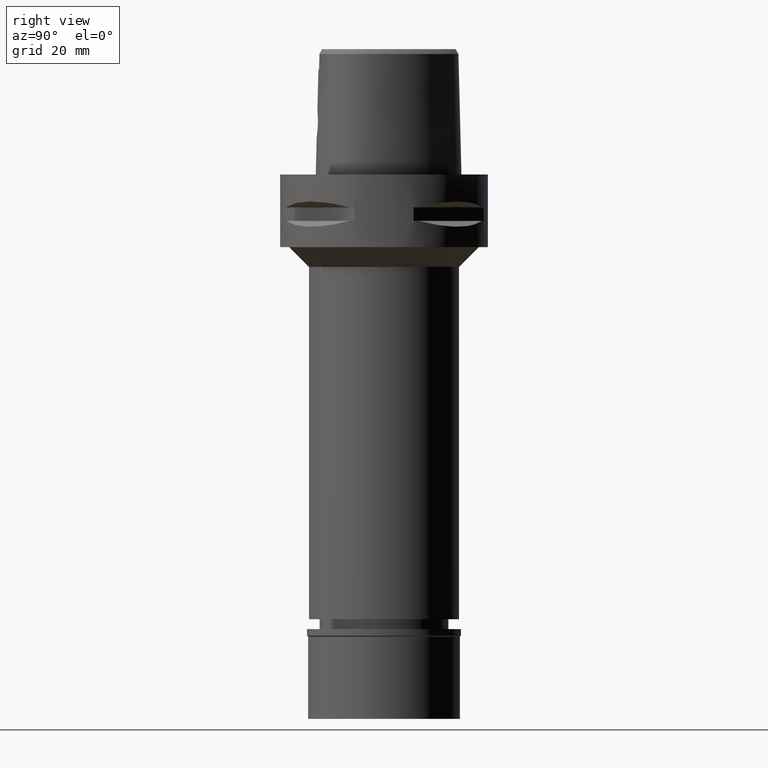
[diagram: clean part render]
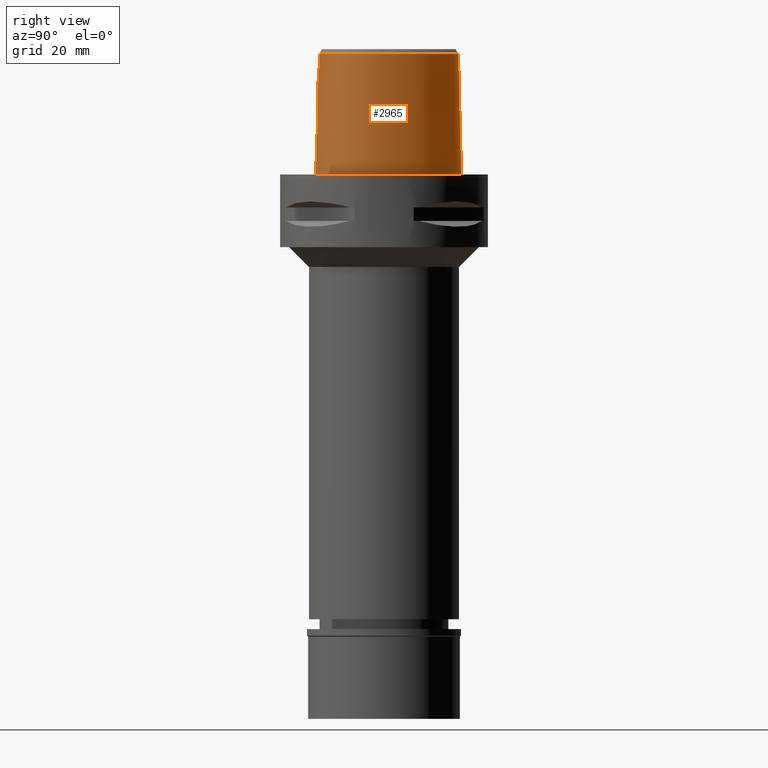
[diagram: same view with one face highlighted and labeled with its STEP entity id]
A machine part, right view. The second image highlights one B-rep face of the part: STEP entity #2965.
In plain terms, the highlighted face is a freeform B-spline surface patch.
Its self-contained STEP definition (entity closure, byte-faithful):
#16 = CARTESIAN_POINT ( 'NONE',  ( 2.282207030334159281, -20.29700151025292243, 12.15162930677144715 ) ) ;
#56 = CARTESIAN_POINT ( 'NONE',  ( 2.808608590041282937, -20.24816661311363220, 12.58196638600997552 ) ) ;
#82 = CARTESIAN_POINT ( 'NONE',  ( 3.644654988657338279, -20.14185568962083295, 13.73169098987477099 ) ) ;
#102 = CARTESIAN_POINT ( 'NONE',  ( 11.23887130171000059, -18.91049775788000176, -0.7304375839958999750 ) ) ;
#124 = CARTESIAN_POINT ( 'NONE',  ( 18.12052909015000068, -13.74516032098000018, 24.59139866119000217 ) ) ;
#126 = CARTESIAN_POINT ( 'NONE',  ( 21.07429999882513627, -0.4408303635840749024, 36.52186680739955449 ) ) ;
#178 = CARTESIAN_POINT ( 'NONE',  ( 16.97022730962000026, -15.69280482925999820, -0.7304375839958999750 ) ) ;
#214 = CARTESIAN_POINT ( 'NONE',  ( 7.099337800026000345, 20.50831394740000135, 37.25231678379000755 ) ) ;
#219 = CARTESIAN_POINT ( 'NONE',  ( 3.736696120837999402, -19.67778323291999953, 31.80000004972999861 ) ) ;
#237 = CARTESIAN_POINT ( 'NONE',  ( 19.15132530701000135, -12.46323155735000121, 24.59139866119000217 ) ) ;
#255 = CARTESIAN_POINT ( 'NONE',  ( 2.520050460813456183, -20.11738995382130568, 18.67115940201987812 ) ) ;
#262 = CARTESIAN_POINT ( 'NONE',  ( 19.54161185373000009, -11.28235486238000007, 37.25231678379000755 ) ) ;
#285 = CARTESIAN_POINT ( 'NONE',  ( 21.31039837220999900, -4.105938496790999537, 37.25231678379000755 ) ) ;
#300 = CARTESIAN_POINT ( 'NONE',  ( 21.97832647786460925, -0.2810937500000018630, -1.531435568635775013E-14 ) ) ;
#305 = CARTESIAN_POINT ( 'NONE',  ( 14.17879762237999941, 15.44741198408999949, 11.93048053859999946 ) ) ;
#425 = CARTESIAN_POINT ( 'NONE',  ( 2.564517726975463763, 23.29328124999227256, -1.531435568635775013E-14 ) ) ;
#451 = CARTESIAN_POINT ( 'NONE',  ( 3.927790621267496896, -20.09243382075442952, 14.47756111132513901 ) ) ;
#458 = CARTESIAN_POINT ( 'NONE',  ( 4.467522181835737349, -19.48130276147253426, 36.52186680739954738 ) ) ;
#486 = CARTESIAN_POINT ( 'NONE',  ( -0.4520500676063000101, -20.37458451786000424, 11.93048053859999946 ) ) ;
#488 = CARTESIAN_POINT ( 'NONE',  ( 7.300578979382257749, -19.07170738130455234, 36.52186680739955449 ) ) ;
#500 = CARTESIAN_POINT ( 'NONE',  ( 4.038482247991152185, -20.06165359963867090, 15.18817721994794212 ) ) ;
#509 = CARTESIAN_POINT ( 'NONE',  ( 11.02138184146000022, -18.31230465115999806, 24.59139866119000217 ) ) ;
#529 = EDGE_CURVE ( 'NONE', #4856, #996, #1940, .T. ) ;
#575 = B_SPLINE_SURFACE_WITH_KNOTS ( 'NONE', 3, 3, ( 
 ( #1341, #3568, #2856, #1306 ),
 ( #3162, #486, #919, #3521 ),
 ( #2874, #2463, #2443, #1273 ),
 ( #1676, #4735, #2078, #3951 ),
 ( #102, #2033, #509, #1653 ),
 ( #4759, #4403, #2809, #3594 ),
 ( #178, #1632, #3145, #4683 ),
 ( #1251, #3548, #124, #2919 ),
 ( #4125, #1045, #237, #3717 ),
 ( #4902, #1772, #2127, #262 ),
 ( #2508, #4509, #1071, #4102 ),
 ( #2527, #3308, #2225, #4454 ),
 ( #2578, #3737, #3664, #4872 ),
 ( #1392, #1414, #3286, #285 ),
 ( #1017, #4827, #576, #1370 ),
 ( #2548, #2974, #1467, #2600 ),
 ( #596, #4025, #654, #676 ),
 ( #2901, #305, #4532, #4431 ),
 ( #4072, #1442, #626, #3641 ),
 ( #2182, #2994, #3697, #214 ),
 ( #993, #4049, #2203, #1851 ),
 ( #1798, #1747, #4850, #3257 ),
 ( #2150, #4477, #2942, #1821 ),
 ( #3331, #3364, #4804, #1092 ),
 ( #3773, #2622, #4151, #702 ) ),
 .UNSPECIFIED., .F., .F., .F.,
 ( 4, 1, 1, 1, 1, 1, 1, 1, 1, 1, 1, 1, 1, 1, 1, 1, 1, 1, 1, 1, 1, 1, 4 ),
 ( 4, 4 ),
 ( -0.008985960173571999957, 0.0000000000000000000, 0.08333333333337000770, 0.1666666666667000196, 0.2083333333333000081, 0.2500000000000000000, 0.2916666666666999919, 0.3124999999998999689, 0.3333333333332000326, 0.3541666666666000163, 0.3749999999998999689, 0.4166666666666000163, 0.4583333333332000326, 0.4999999999998999689, 0.5833333333331000015, 0.6666666666664999852, 0.7499999999998000488, 0.8333333333329999704, 0.8749999999997000177, 0.9166666666664000651, 0.9583333333329999704, 1.000000000000000000, 1.011710456763000199 ),
 ( 3.720000977397000129E-09, 0.9999998102800000677 ),
 .UNSPECIFIED. ) ;
#576 = CARTESIAN_POINT ( 'NONE',  ( 21.36961510876999881, -0.3886497729752999564, 24.59139866119000217 ) ) ;
#596 = CARTESIAN_POINT ( 'NONE',  ( 18.08416038109999846, 10.44089487092999846, -0.7304375839958999750 ) ) ;
#611 = CARTESIAN_POINT ( 'NONE',  ( 2.772326413961002878, -20.10389738242831115, 18.45539022241095495 ) ) ;
#626 = CARTESIAN_POINT ( 'NONE',  ( 10.34823243469999987, 18.70095505875999820, 24.59139866119000217 ) ) ;
#647 = CARTESIAN_POINT ( 'NONE',  ( 2.915545606159905656, -20.09570297646327930, 18.31119129212326513 ) ) ;
#654 = CARTESIAN_POINT ( 'NONE',  ( 17.53318585904000315, 10.12278934533000019, 24.59139866119000217 ) ) ;
#668 = CARTESIAN_POINT ( 'NONE',  ( 20.93173252212098134, -10.60431640624750216, -1.531435568635775013E-14 ) ) ;
#676 = CARTESIAN_POINT ( 'NONE',  ( 17.25769859801999928, 9.963736582529000074, 37.25231678379000755 ) ) ;
#702 = CARTESIAN_POINT ( 'NONE',  ( -0.6642815369269999826, 22.52377652670999808, 37.25231678379000755 ) ) ;
#707 = ORIENTED_EDGE ( 'NONE', *, *, #1879, .T. ) ;
#750 = CARTESIAN_POINT ( 'NONE',  ( 1.527965580143133550, -20.34815231994709706, 11.74928068373123580 ) ) ;
#784 = CARTESIAN_POINT ( 'NONE',  ( 1.856701250882539345, -20.14848423775792696, 19.09993988374112917 ) ) ;
#803 = CARTESIAN_POINT ( 'NONE',  ( 5.098437017284251027, 22.52602539062982601, -1.531435568635775013E-14 ) ) ;
#804 = CARTESIAN_POINT ( 'NONE',  ( 2.953000302315821113, -20.23281254683490005, 12.72512295698632911 ) ) ;
#816 = CARTESIAN_POINT ( 'NONE',  ( 1.027682876514111943, -20.17741712424493272, 19.45809765211517472 ) ) ;
#821 = B_SPLINE_CURVE_WITH_KNOTS ( 'NONE', 3,
 ( #2451, #956, #3961, #2139 ),
 .UNSPECIFIED., .F., .F.,
 ( 4, 4 ),
 ( 0.0000000000000000000, 1.000000000000000000 ),
 .UNSPECIFIED. ) ;
#832 = CARTESIAN_POINT ( 'NONE',  ( 3.328551379753822648, -20.18727222455861536, 13.19186960085993476 ) ) ;
#847 = CARTESIAN_POINT ( 'NONE',  ( 21.32871516740029350, -4.105831245034368138, 36.52186680739955449 ) ) ;
#863 = CARTESIAN_POINT ( 'NONE',  ( 1.251533272183123824, -19.88005341395369996, 31.80000012137771392 ) ) ;
#864 = CARTESIAN_POINT ( 'NONE',  ( 3.787426346250732934, -20.04607170149541417, 16.93525315950381582 ) ) ;
#912 = CARTESIAN_POINT ( 'NONE',  ( 4.045013207763536123, -20.05847505278510212, 15.28275217475145631 ) ) ;
#919 = CARTESIAN_POINT ( 'NONE',  ( -0.4479923902756000054, -20.05810148191000053, 24.59139866119000217 ) ) ;
#945 = CARTESIAN_POINT ( 'NONE',  ( 3.637738219117000238, -19.56971420299000286, 36.52185956443999970 ) ) ;
#956 = CARTESIAN_POINT ( 'NONE',  ( 3.704239288984441103, -19.64128042389065598, 33.37395322129999897 ) ) ;
#959 = CARTESIAN_POINT ( 'NONE',  ( 2.963657114680564586, -20.09293563006380623, 18.26079471622526640 ) ) ;
#993 = CARTESIAN_POINT ( 'NONE',  ( 5.105252915213000620, 22.54305024017000036, -0.7304375839958999750 ) ) ;
#996 = VERTEX_POINT ( 'NONE', #2178 ) ;
#1011 = CARTESIAN_POINT ( 'NONE',  ( 3.128678969642841867, -20.08334280844329101, 18.07279819849544111 ) ) ;
#1017 = CARTESIAN_POINT ( 'NONE',  ( 21.99640701358000072, -0.2778990166443000009, -0.7304375839958999750 ) ) ;
#1045 = CARTESIAN_POINT ( 'NONE',  ( 19.40779772567000094, -12.64961930133999957, 11.93048053859999946 ) ) ;
#1062 = CARTESIAN_POINT ( 'NONE',  ( 1.946611602623477655, -20.32311006283068977, 11.93862046632969687 ) ) ;
#1063 = B_SPLINE_CURVE_WITH_KNOTS ( 'NONE', 3,
 ( #2667, #3809, #3350, #1948, #3064, #1541, #4606, #3456, #4116, #668, #2216, #1457, #3731, #300, #2986, #4715, #3867, #2015, #4273, #803, #425, #4643, #2429 ),
 .UNSPECIFIED., .F., .F.,
 ( 4, 1, 1, 1, 1, 1, 1, 1, 1, 1, 1, 1, 1, 1, 1, 1, 1, 1, 1, 1, 4 ),
 ( 0.0000000000000000000, 0.08333333333337000770, 0.1666666666667000196, 0.2083333333333000081, 0.2500000000000000000, 0.2916666666666999919, 0.3124999999998999689, 0.3333333333332000326, 0.3541666666666000163, 0.3749999999998999689, 0.4166666666666000163, 0.4583333333332000326, 0.4999999999998999689, 0.5833333333331000015, 0.6666666666664999852, 0.7499999999998000488, 0.8333333333329999704, 0.8749999999997000177, 0.9166666666664000651, 0.9583333333329999704, 1.000000000000000000 ),
 .UNSPECIFIED. ) ;
#1071 = CARTESIAN_POINT ( 'NONE',  ( 20.36913779870999974, -10.35391845990999826, 24.59139866119000217 ) ) ;
#1092 = CARTESIAN_POINT ( 'NONE',  ( -0.4431573443601999895, 22.53713883445999855, 37.25231678379000755 ) ) ;
#1177 = CARTESIAN_POINT ( 'NONE',  ( -1.813182109769000202E-11, 22.56201468012000078, 36.52186680743999858 ) ) ;
#1194 = CARTESIAN_POINT ( 'NONE',  ( 2.032175996651457428, -20.14130468680129837, 19.00576489869891006 ) ) ;
#1211 = CARTESIAN_POINT ( 'NONE',  ( 3.042491796682586180, -20.22274507509884955, 12.82354767342554425 ) ) ;
#1221 = CARTESIAN_POINT ( 'NONE',  ( 2.144427845698688717, -20.13626349860879827, 18.93810770243429431 ) ) ;
#1251 = CARTESIAN_POINT ( 'NONE',  ( 18.58171406413000071, -14.18198046384999955, -0.7304375839958999750 ) ) ;
#1252 = EDGE_CURVE ( 'NONE', #3582, #4062, #3381, .T. ) ;
#1273 = CARTESIAN_POINT ( 'NONE',  ( 1.836480386882999971, -19.76356528368999932, 37.25231678379000755 ) ) ;
#1275 = CARTESIAN_POINT ( 'NONE',  ( 17.27359236349257543, 9.972912859139258401, 36.52186680739955449 ) ) ;
#1298 = CARTESIAN_POINT ( 'NONE',  ( 3.918456791369016923, -20.04170609324411245, 16.53266420032808881 ) ) ;
#1306 = CARTESIAN_POINT ( 'NONE',  ( -0.6657939564065999960, -19.73734231998999888, 37.25231678379000755 ) ) ;
#1307 = CARTESIAN_POINT ( 'NONE',  ( 10.91891095220838714, -18.03046396092976877, 36.52186680739955449 ) ) ;
#1325 = LINE ( 'NONE', #4360, #3515 ) ;
#1341 = CARTESIAN_POINT ( 'NONE',  ( -0.6840631435740001098, -20.68668116151999925, -0.7304375839958999750 ) ) ;
#1370 = CARTESIAN_POINT ( 'NONE',  ( 21.05621915635999741, -0.4440251511407000140, 37.25231678379000755 ) ) ;
#1381 = VERTEX_POINT ( 'NONE', #3280 ) ;
#1392 = CARTESIAN_POINT ( 'NONE',  ( 22.26285556299000135, -4.100361500063000264, -0.7304375839958999750 ) ) ;
#1414 = CARTESIAN_POINT ( 'NONE',  ( 21.94536983272999819, -4.102220498972000584, 11.93048053859999946 ) ) ;
#1429 = CARTESIAN_POINT ( 'NONE',  ( 0.2519697368784573066, -20.38876923348000503, 11.44999999999999929 ) ) ;
#1442 = CARTESIAN_POINT ( 'NONE',  ( 10.55288408564999969, 18.94467590721999883, 11.93048053859999946 ) ) ;
#1444 = VECTOR ( 'NONE', #2689, 1000.000000000000114 ) ;
#1457 = CARTESIAN_POINT ( 'NONE',  ( 22.05732874322212922, -6.847636718749212648, -1.531435568635775013E-14 ) ) ;
#1467 = CARTESIAN_POINT ( 'NONE',  ( 20.16779742675999998, 4.447573676276999066, 24.59139866119000217 ) ) ;
#1486 = B_SPLINE_CURVE_WITH_KNOTS ( 'NONE', 3,
 ( #3135, #4702, #863, #3157 ),
 .UNSPECIFIED., .F., .F.,
 ( 4, 4 ),
 ( 0.0000000000000000000, 1.000000000000000000 ),
 .UNSPECIFIED. ) ;
#1499 = CARTESIAN_POINT ( 'NONE',  ( -6.933881406493999842E-13, -20.38876923348000147, 11.44999999999999929 ) ) ;
#1507 = CARTESIAN_POINT ( 'NONE',  ( -6.933881406493999842E-13, -20.38876923348000147, 11.44999999999999929 ) ) ;
#1541 = CARTESIAN_POINT ( 'NONE',  ( 16.95889172594019456, -15.67838867187385965, -1.531435568635775013E-14 ) ) ;
#1542 = CARTESIAN_POINT ( 'NONE',  ( 2.570081009447551246, -20.27170108687424488, 12.36908902969320678 ) ) ;
#1588 = CARTESIAN_POINT ( 'NONE',  ( 2.830175095698886256, -20.24590160278633277, 12.60298252337447167 ) ) ;
#1606 = ORIENTED_EDGE ( 'NONE', *, *, #3342, .F. ) ;
#1615 = CARTESIAN_POINT ( 'NONE',  ( 3.686910441632668345, -20.13511169297331449, 13.82359477175358187 ) ) ;
#1624 = CARTESIAN_POINT ( 'NONE',  ( 3.950323019396363211, -20.04135421479645274, 16.40274729699333633 ) ) ;
#1632 = CARTESIAN_POINT ( 'NONE',  ( 16.77374385917000410, -15.44292476790000102, 11.93048053859999946 ) ) ;
#1634 = ORIENTED_EDGE ( 'NONE', *, *, #4230, .T. ) ;
#1653 = CARTESIAN_POINT ( 'NONE',  ( 10.91263711133999870, -18.01320809779000243, 37.25231678379000755 ) ) ;
#1655 = CARTESIAN_POINT ( 'NONE',  ( 17.90324024157284200, -13.53935104436245673, 36.52186680739955449 ) ) ;
#1662 = ORIENTED_EDGE ( 'NONE', *, *, #1252, .F. ) ;
#1676 = CARTESIAN_POINT ( 'NONE',  ( 6.344715576272000668, -20.31619964730000305, -0.7304375839958999750 ) ) ;
#1677 = CARTESIAN_POINT ( 'NONE',  ( 21.14970177530874906, -6.717195943319274498, 36.52186680739955449 ) ) ;
#1729 = CARTESIAN_POINT ( 'NONE',  ( 2.376843874103109044, 22.39422497744521223, 36.52186680739955449 ) ) ;
#1740 = CARTESIAN_POINT ( 'NONE',  ( 3.745459306425951596, -20.04797394566474011, 17.04080371184617704 ) ) ;
#1747 = CARTESIAN_POINT ( 'NONE',  ( 2.503210914222000039, 22.99958943465000161, 11.93048053859999946 ) ) ;
#1772 = CARTESIAN_POINT ( 'NONE',  ( 20.09084477995000029, -11.59945464137999949, 11.93048053859999946 ) ) ;
#1791 = CARTESIAN_POINT ( 'NONE',  ( 2.467729343595080227, -20.12009802658522872, 18.71204267792693088 ) ) ;
#1798 = CARTESIAN_POINT ( 'NONE',  ( 2.568271205287000036, 23.31126238154999797, -0.7304375839958999750 ) ) ;
#1813 = CARTESIAN_POINT ( 'NONE',  ( 2.041042029990999821E-08, -19.88004246002000031, 31.80000004972000127 ) ) ;
#1821 = CARTESIAN_POINT ( 'NONE',  ( 0.5662264631304000373, 22.56729423615000130, 37.25231678379000755 ) ) ;
#1851 = CARTESIAN_POINT ( 'NONE',  ( 4.750826222919999786, 21.65775806409999760, 37.25231678379000755 ) ) ;
#1879 = EDGE_CURVE ( 'NONE', #2752, #2059, #1486, .T. ) ;
#1911 = B_SPLINE_CURVE_WITH_KNOTS ( 'NONE', 3,
 ( #2101, #3213, #2831, #2437 ),
 .UNSPECIFIED., .F., .F.,
 ( 4, 4 ),
 ( 0.0000000000000000000, 1.000000000000000000 ),
 .UNSPECIFIED. ) ;
#1913 = CARTESIAN_POINT ( 'NONE',  ( 1.511996643076225499, -20.34900293593732457, 11.74281483622912781 ) ) ;
#1940 = LINE ( 'NONE', #4599, #1444 ) ;
#1948 = CARTESIAN_POINT ( 'NONE',  ( 11.23259756727999203, -18.89324218749384698, -1.531435568635775013E-14 ) ) ;
#1975 = CARTESIAN_POINT ( 'NONE',  ( 3.828814954407537385, -20.04436409866698909, 16.82317999466109626 ) ) ;
#1989 = CARTESIAN_POINT ( 'NONE',  ( 3.504989208381152466, -20.16277707623421023, 13.46647361517919705 ) ) ;
#2014 = EDGE_LOOP ( 'NONE', ( #2367, #3141, #1606, #707, #1634, #1662, #4219, #3333 ) ) ;
#2015 = CARTESIAN_POINT ( 'NONE',  ( 10.74572891059309043, 19.17433593749962384, -1.531435568635775013E-14 ) ) ;
#2033 = CARTESIAN_POINT ( 'NONE',  ( 11.13012657158999907, -18.61140120451999636, 11.93048053859999946 ) ) ;
#2034 = B_SPLINE_CURVE_WITH_KNOTS ( 'NONE', 3,
 ( #2783, #2387, #1729, #3975, #2081, #3550, #3163, #1275, #4708, #126, #847, #1677, #3192, #4737, #2858, #4339, #1655, #3929, #4384, #1307, #488, #458, #945 ),
 .UNSPECIFIED., .F., .F.,
 ( 4, 1, 1, 1, 1, 1, 1, 1, 1, 1, 1, 1, 1, 1, 1, 1, 1, 1, 1, 1, 4 ),
 ( 0.0000000000000000000, 0.04382683003322055543, 0.08765366006602023918, 0.1314804900989252623, 0.1753073201318302854, 0.2629609801974297500, 0.3506146402631346026, 0.4382683003289444823, 0.5259219603945440857, 0.5697487904274489701, 0.6135756204602488273, 0.6574024504931538226, 0.6793158655095536957, 0.7012292805260587070, 0.7231426955424586911, 0.7450561105587533151, 0.7888829405916583104, 0.8327097706245633058, 0.8765366006573630520, 0.9641902607230994349, 1.000000000000000000 ),
 .UNSPECIFIED. ) ;
#2058 = DIRECTION ( 'NONE',  ( -4.234993250064874174E-13, -0.02499051295389925070, -0.9996876883618708298 ) ) ;
#2059 = VERTEX_POINT ( 'NONE', #1813 ) ;
#2078 = CARTESIAN_POINT ( 'NONE',  ( 6.232237598176999960, -19.68961187424000059, 24.59139866119000217 ) ) ;
#2081 = CARTESIAN_POINT ( 'NONE',  ( 7.108589361577290155, 20.52412316394564584, 36.52186680739955449 ) ) ;
#2101 = CARTESIAN_POINT ( 'NONE',  ( 2.041042029990999821E-08, -19.88004246002000031, 31.80000004972000127 ) ) ;
#2127 = CARTESIAN_POINT ( 'NONE',  ( 19.81622831684000019, -11.44090475187999978, 24.59139866119000217 ) ) ;
#2139 = CARTESIAN_POINT ( 'NONE',  ( 3.637738219117000238, -19.56971420299000286, 36.52185956443999970 ) ) ;
#2143 = CARTESIAN_POINT ( 'NONE',  ( 3.003234361607479030, -20.09064592609355770, 18.21745801851382041 ) ) ;
#2150 = CARTESIAN_POINT ( 'NONE',  ( 0.6155340739165999775, 23.51883497514999988, -0.7304375839958999750 ) ) ;
#2169 = CARTESIAN_POINT ( 'NONE',  ( 2.673904828757555308, -20.10928166633842196, 18.54472627324817324 ) ) ;
#2178 = CARTESIAN_POINT ( 'NONE',  ( 3.796789054058000055E-11, 23.47499999999000053, 6.972200594645999482E-14 ) ) ;
#2182 = CARTESIAN_POINT ( 'NONE',  ( 7.580410838945000229, 21.33037926083000002, -0.7304375839958999750 ) ) ;
#2203 = CARTESIAN_POINT ( 'NONE',  ( 4.868968453684000330, 21.95285545611999822, 24.59139866119000217 ) ) ;
#2216 = CARTESIAN_POINT ( 'NONE',  ( 21.55524826009519401, -8.996025390624902585, -1.531435568635775013E-14 ) ) ;
#2225 = CARTESIAN_POINT ( 'NONE',  ( 20.96392254219000151, -8.820258326728000142, 24.59139866119000217 ) ) ;
#2231 = EDGE_CURVE ( 'NONE', #1381, #996, #1063, .T. ) ;
#2241 = CARTESIAN_POINT ( 'NONE',  ( 0.8988479711744666867, -20.37494334817868591, 11.54879813003824651 ) ) ;
#2334 = CARTESIAN_POINT ( 'NONE',  ( 1.767192251238097311, -20.15197845540322774, 19.14519926632709002 ) ) ;
#2360 = CARTESIAN_POINT ( 'NONE',  ( 4.050037399383525916, -20.04599349312600864, 15.75361975468233133 ) ) ;
#2367 = ORIENTED_EDGE ( 'NONE', *, *, #529, .F. ) ;
#2375 = CARTESIAN_POINT ( 'NONE',  ( 2.714817435484936592, -20.25772213909843700, 12.49437854297869954 ) ) ;
#2387 = CARTESIAN_POINT ( 'NONE',  ( 0.7901461619506717771, 22.56201467849539100, 36.52186680739955449 ) ) ;
#2407 = CARTESIAN_POINT ( 'NONE',  ( 4.048221369816666027, -20.05572751809631526, 15.37605551816906768 ) ) ;
#2429 = CARTESIAN_POINT ( 'NONE',  ( 3.796789054058000055E-11, 23.47499999999000053, 6.972200594645999482E-14 ) ) ;
#2437 = CARTESIAN_POINT ( 'NONE',  ( 0.0000000000000000000, -20.18628283968999781, 19.55000000000000071 ) ) ;
#2443 = CARTESIAN_POINT ( 'NONE',  ( 1.853272125636999945, -20.08023992013000125, 24.59139866119000217 ) ) ;
#2451 = CARTESIAN_POINT ( 'NONE',  ( 3.736696120837999402, -19.67778323291999953, 31.80000004972999861 ) ) ;
#2463 = CARTESIAN_POINT ( 'NONE',  ( 1.870063864392000008, -20.39691455656999963, 11.93048053859999946 ) ) ;
#2508 = CARTESIAN_POINT ( 'NONE',  ( 20.94844325648000094, -10.61175396900999957, -0.7304375839958999750 ) ) ;
#2527 = CARTESIAN_POINT ( 'NONE',  ( 21.57281239033000020, -9.001246194503000453, -0.7304375839958999750 ) ) ;
#2548 = CARTESIAN_POINT ( 'NONE',  ( 20.76670354688000231, 4.663413653179999230, -0.7304375839958999750 ) ) ;
#2578 = CARTESIAN_POINT ( 'NONE',  ( 22.07548128874000071, -6.850245535142999387, -0.7304375839958999750 ) ) ;
#2593 = CARTESIAN_POINT ( 'NONE',  ( 2.396851616102642524, -20.28741283533604189, 12.23208293758428766 ) ) ;
#2600 = CARTESIAN_POINT ( 'NONE',  ( 19.86834436671000148, 4.339653687825999917, 37.25231678379000755 ) ) ;
#2622 = CARTESIAN_POINT ( 'NONE',  ( -0.7025952887263999802, 23.15559749862000061, 11.93048053859999946 ) ) ;
#2640 = CARTESIAN_POINT ( 'NONE',  ( 1.488028627204445176, -20.35026873354180665, 11.73319909950308926 ) ) ;
#2667 = CARTESIAN_POINT ( 'NONE',  ( -5.543970305236001200E-12, -20.67499999999999716, 7.264559324463998182E-14 ) ) ;
#2668 = CARTESIAN_POINT ( 'NONE',  ( 1.028701314429431912, -20.37062275902201591, 11.58049741886232553 ) ) ;
#2689 = DIRECTION ( 'NONE',  ( 1.535578434179960476E-12, 0.02499051290971940689, -0.9996876883629751687 ) ) ;
#2715 = CARTESIAN_POINT ( 'NONE',  ( 2.853007646183670865, -20.24348516854188418, 12.62547111175247672 ) ) ;
#2732 = CARTESIAN_POINT ( 'NONE',  ( 1.613182323475279789, -20.15753140428514456, 19.21500890073101786 ) ) ;
#2744 = CARTESIAN_POINT ( 'NONE',  ( 3.210108431844092003, -20.20255916618839009, 13.02975361489420791 ) ) ;
#2752 = VERTEX_POINT ( 'NONE', #219 ) ;
#2775 = CARTESIAN_POINT ( 'NONE',  ( 3.765593220699952504, -20.04704214534186590, 16.99108095766779059 ) ) ;
#2783 = CARTESIAN_POINT ( 'NONE',  ( -1.813182109769000202E-11, 22.56201468012000078, 36.52186680743999858 ) ) ;
#2800 = CARTESIAN_POINT ( 'NONE',  ( 3.850246712487877421, -20.10780614033384239, 14.21172176749404414 ) ) ;
#2809 = CARTESIAN_POINT ( 'NONE',  ( 14.36818034189999871, -16.67825731682999901, 24.59139866119000217 ) ) ;
#2831 = CARTESIAN_POINT ( 'NONE',  ( 6.841563408373843762E-09, -20.08420636276207460, 23.63333344114143131 ) ) ;
#2856 = CARTESIAN_POINT ( 'NONE',  ( -0.6718836854624000710, -20.05378860049999901, 24.59139866119000217 ) ) ;
#2858 = CARTESIAN_POINT ( 'NONE',  ( 19.55745538000927297, -11.29150212657684094, 36.52186680739955449 ) ) ;
#2874 = CARTESIAN_POINT ( 'NONE',  ( 1.886855603145999982, -20.71358919300000068, -0.7304375839958999750 ) ) ;
#2901 = CARTESIAN_POINT ( 'NONE',  ( 14.42198651819000155, 15.65278600097999906, -0.7304375839958999750 ) ) ;
#2919 = CARTESIAN_POINT ( 'NONE',  ( 17.88993660315999890, -13.52675024954000094, 37.25231678379000755 ) ) ;
#2942 = CARTESIAN_POINT ( 'NONE',  ( 0.5826623333925000647, 22.88447448247999816, 24.59139866119000217 ) ) ;
#2960 = CARTESIAN_POINT ( 'NONE',  ( 0.5100579658800808991, -20.38531276215467258, 11.47358267918772157 ) ) ;
#2965 = ADVANCED_FACE ( 'NONE', ( #4382 ), #575, .T. ) ;
#2974 = CARTESIAN_POINT ( 'NONE',  ( 20.46725048681999937, 4.555493664727999992, 11.93048053859999946 ) ) ;
#2986 = CARTESIAN_POINT ( 'NONE',  ( 20.74942740879961889, 4.657187500000079083, -1.531435568635775013E-14 ) ) ;
#2994 = CARTESIAN_POINT ( 'NONE',  ( 7.420053159305999735, 21.05635748968999721, 11.93048053859999946 ) ) ;
#3009 = CARTESIAN_POINT ( 'NONE',  ( 1.319600680388892000, -20.35863312411229131, 11.66994494017140838 ) ) ;
#3019 = CARTESIAN_POINT ( 'NONE',  ( 0.0000000000000000000, -20.18628283968999781, 19.55000000000000071 ) ) ;
#3036 = CARTESIAN_POINT ( 'NONE',  ( 3.637738219117000238, -19.56971420299000286, 36.52185956443999970 ) ) ;
#3049 = CARTESIAN_POINT ( 'NONE',  ( 1.675120599112077890, -20.15532933629898338, 19.18749499250021628 ) ) ;
#3064 = CARTESIAN_POINT ( 'NONE',  ( 14.67337964419941443, -17.21410156249711676, -1.531435568635775013E-14 ) ) ;
#3065 = CARTESIAN_POINT ( 'NONE',  ( 2.628027081203953674, -20.26624238137256384, 12.41747670501291267 ) ) ;
#3082 = CARTESIAN_POINT ( 'NONE',  ( 2.844541275151272419, -20.24438467540100106, 12.61708719067871698 ) ) ;
#3102 = CARTESIAN_POINT ( 'NONE',  ( 2.758179676761520316, -20.25337897195596781, 12.53390918854247005 ) ) ;
#3117 = CARTESIAN_POINT ( 'NONE',  ( 2.305334229545943803, -20.12831948498794432, 18.83048013502862617 ) ) ;
#3129 = CARTESIAN_POINT ( 'NONE',  ( 3.714384130509364113, -20.13065104888373469, 13.88538127567771951 ) ) ;
#3135 = CARTESIAN_POINT ( 'NONE',  ( 3.736696120837999402, -19.67778323291999953, 31.80000004972999861 ) ) ;
#3136 = CARTESIAN_POINT ( 'NONE',  ( 3.860403433734159506, -20.04330035601025983, 16.72651338065666593 ) ) ;
#3141 = ORIENTED_EDGE ( 'NONE', *, *, #3665, .T. ) ;
#3145 = CARTESIAN_POINT ( 'NONE',  ( 16.57726040871999729, -15.19304470654999939, 24.59139866119000217 ) ) ;
#3157 = CARTESIAN_POINT ( 'NONE',  ( 2.041042029990999821E-08, -19.88004246002000031, 31.80000004972000127 ) ) ;
#3162 = CARTESIAN_POINT ( 'NONE',  ( -0.4561077449369999592, -20.69106755381000085, -0.7304375839958999750 ) ) ;
#3163 = CARTESIAN_POINT ( 'NONE',  ( 13.70645019738556769, 15.04851265230268886, 36.52186680739955449 ) ) ;
#3178 = CARTESIAN_POINT ( 'NONE',  ( 4.026067555603961345, -20.04243146964274658, 16.01312629724012027 ) ) ;
#3192 = CARTESIAN_POINT ( 'NONE',  ( 20.67704204634279819, -8.734985285293758395, 36.52186680739955449 ) ) ;
#3213 = CARTESIAN_POINT ( 'NONE',  ( 6.821562232475935593E-09, -19.98212988583398797, 27.71666688228309994 ) ) ;
#3257 = CARTESIAN_POINT ( 'NONE',  ( 2.373090332092000043, 22.37624354083000000, 37.25231678379000755 ) ) ;
#3279 = CARTESIAN_POINT ( 'NONE',  ( 3.749536200693981414, -20.04778253193094528, 17.03086640830688836 ) ) ;
#3280 = CARTESIAN_POINT ( 'NONE',  ( -5.543970305236001200E-12, -20.67499999999999716, 7.264559324463998182E-14 ) ) ;
#3286 = CARTESIAN_POINT ( 'NONE',  ( 21.62788410247000215, -4.104079497881999217, 24.59139866119000217 ) ) ;
#3303 = CARTESIAN_POINT ( 'NONE',  ( 2.361140904827191189, -20.12552479265231042, 18.79118822093420604 ) ) ;
#3308 = CARTESIAN_POINT ( 'NONE',  ( 21.26836746625999908, -8.910752260616000342, 11.93048053859999946 ) ) ;
#3327 = CARTESIAN_POINT ( 'NONE',  ( 3.080229322167729933, -20.08617626112546972, 18.13071590548239342 ) ) ;
#3331 = CARTESIAN_POINT ( 'NONE',  ( -0.4812391253148999848, 23.48607176047999801, -0.7304375839958999750 ) ) ;
#3333 = ORIENTED_EDGE ( 'NONE', *, *, #2231, .T. ) ;
#3342 = EDGE_CURVE ( 'NONE', #2752, #4559, #821, .T. ) ;
#3350 = CARTESIAN_POINT ( 'NONE',  ( 6.341471019210932702, -20.29812500000038611, -1.531435568635775013E-14 ) ) ;
#3364 = CARTESIAN_POINT ( 'NONE',  ( -0.4685451983300000234, 23.16976078513999937, 11.93048053859999946 ) ) ;
#3381 = B_SPLINE_CURVE_WITH_KNOTS ( 'NONE', 3,
 ( #1507, #1429, #2960, #2241, #2668, #4197, #3009, #4500, #2640, #1913, #750, #3760, #4549, #1062, #16, #2593, #1542, #3065, #2375, #3102, #56, #1588, #3082, #2715, #804, #1211, #4644, #2744, #4274, #832, #3888, #1989, #3502, #82, #1615, #3129, #4669, #2800, #451, #3965, #4351, #500, #912, #2407, #4677, #3510, #2360, #3178, #1624, #1298, #3136, #1975, #864, #2775, #3491, #3279, #1740, #4423, #4792, #3614, #4448, #1011, #3327, #2143, #959, #647, #4042, #4064, #4845, #611, #2169, #255, #1791, #3303, #3117, #1221, #1194, #784, #2334, #3049, #2732, #4253, #816, #3517, #3019 ),
 .UNSPECIFIED., .F., .F.,
 ( 4, 2, 2, 1, 1, 1, 2, 2, 2, 2, 2, 1, 1, 2, 2, 2, 2, 2, 2, 1, 2, 2, 2, 2, 1, 2, 2, 2, 2, 1, 1, 1, 2, 2, 2, 2, 2, 1, 1, 2, 2, 2, 2, 2, 2, 1, 2, 2, 4 ),
 ( 0.0000000000000000000, 0.06249999999999786282, 0.09374999999999682199, 0.1093749999999962946, 0.1171874999999960448, 0.1210937499999960171, 0.1230468749999959477, 0.1249999999999958644, 0.1874999999999944766, 0.2187499999999937272, 0.2343749999999935052, 0.2421874999999935330, 0.2460937499999935052, 0.2480468749999934497, 0.2499999999999934497, 0.2812499999999920619, 0.2968749999999915068, 0.3124999999999909517, 0.3437499999999902855, 0.3593749999999897859, 0.3671874999999897304, 0.3749999999999896749, 0.4374999999999912292, 0.4687499999999920619, 0.4843749999999927280, 0.4921874999999932276, 0.4999999999999937828, 0.5624999999999967804, 0.5937499999999977796, 0.6093749999999986677, 0.6171874999999992228, 0.6210937499999991118, 0.6230468749999986677, 0.6249999999999982236, 0.6874999999999921174, 0.7187499999999887867, 0.7343749999999870104, 0.7421874999999861222, 0.7460937499999854561, 0.7480468749999854561, 0.7499999999999853451, 0.7812499999999883427, 0.7968749999999898970, 0.8124999999999913403, 0.8437499999999937828, 0.8593749999999947820, 0.8671874999999951150, 0.8749999999999953371, 1.000000000000000000 ),
 .UNSPECIFIED. ) ;
#3456 = CARTESIAN_POINT ( 'NONE',  ( 19.64947365863808315, -12.82525390625365524, -1.531435568635775013E-14 ) ) ;
#3491 = CARTESIAN_POINT ( 'NONE',  ( 3.755991642142633591, -20.04748304465438480, 17.01495889863446465 ) ) ;
#3502 = CARTESIAN_POINT ( 'NONE',  ( 3.599362307443623177, -20.14875877780777458, 13.64217581377790367 ) ) ;
#3510 = CARTESIAN_POINT ( 'NONE',  ( 4.049995275655164484, -20.05320010482862614, 15.46762644421532507 ) ) ;
#3515 = VECTOR ( 'NONE', #2058, 1000.000000000000114 ) ;
#3517 = CARTESIAN_POINT ( 'NONE',  ( 0.4948470747705083217, -20.18628283969000492, 19.55000000000000071 ) ) ;
#3521 = CARTESIAN_POINT ( 'NONE',  ( -0.4439347129449000007, -19.74161844596000037, 37.25231678379000755 ) ) ;
#3548 = CARTESIAN_POINT ( 'NONE',  ( 18.35112157713999892, -13.96357039242000120, 11.93048053859999946 ) ) ;
#3550 = CARTESIAN_POINT ( 'NONE',  ( 10.15538781006813096, 18.47129526703218971, 36.52186680739955449 ) ) ;
#3568 = CARTESIAN_POINT ( 'NONE',  ( -0.6779734145181999239, -20.37023488101000268, 11.93048053859999946 ) ) ;
#3582 = VERTEX_POINT ( 'NONE', #1499 ) ;
#3594 = CARTESIAN_POINT ( 'NONE',  ( 14.21104802785000132, -16.40237711114000163, 37.25231678379000755 ) ) ;
#3614 = CARTESIAN_POINT ( 'NONE',  ( 3.346444325154693811, -20.07049246070129556, 17.78503332972064754 ) ) ;
#3641 = CARTESIAN_POINT ( 'NONE',  ( 10.14358078373999916, 18.45723421029999756, 37.25231678379000755 ) ) ;
#3664 = CARTESIAN_POINT ( 'NONE',  ( 21.44619304412999838, -6.759806566824999585, 24.59139866119000217 ) ) ;
#3665 = EDGE_CURVE ( 'NONE', #4856, #4559, #2034, .T. ) ;
#3697 = CARTESIAN_POINT ( 'NONE',  ( 7.259695479666000040, 20.78233571855000150, 24.59139866119000217 ) ) ;
#3701 = EDGE_CURVE ( 'NONE', #3582, #1381, #1325, .T. ) ;
#3717 = CARTESIAN_POINT ( 'NONE',  ( 18.89485288835000176, -12.27684381335999930, 37.25231678379000755 ) ) ;
#3731 = CARTESIAN_POINT ( 'NONE',  ( 22.24453907855193080, -4.100468750000058726, -1.531435568635775013E-14 ) ) ;
#3737 = CARTESIAN_POINT ( 'NONE',  ( 21.76083716643000088, -6.805026050984000818, 11.93048053859999946 ) ) ;
#3760 = CARTESIAN_POINT ( 'NONE',  ( 1.537967824475355849, -20.34761404974033638, 11.75337532982158351 ) ) ;
#3773 = CARTESIAN_POINT ( 'NONE',  ( -0.7217521646260999235, 23.47150798458000054, -0.7304375839958999750 ) ) ;
#3809 = CARTESIAN_POINT ( 'NONE',  ( 2.113823673067697140, -20.67499999999467164, -1.531435568635775013E-14 ) ) ;
#3867 = CARTESIAN_POINT ( 'NONE',  ( 14.40795638958557134, 15.64093750000557570, -1.531435568635775013E-14 ) ) ;
#3888 = CARTESIAN_POINT ( 'NONE',  ( 3.437023659481849513, -20.17240543792192753, 13.35378256634043659 ) ) ;
#3929 = CARTESIAN_POINT ( 'NONE',  ( 16.39211273426606397, -14.95758104715652692, 36.52186680739955449 ) ) ;
#3951 = CARTESIAN_POINT ( 'NONE',  ( 6.175998609129999650, -19.37631798770999936, 37.25231678379000755 ) ) ;
#3961 = CARTESIAN_POINT ( 'NONE',  ( 3.671249151389730514, -19.60525176641679579, 34.94790639287000289 ) ) ;
#3965 = CARTESIAN_POINT ( 'NONE',  ( 4.002664568942667422, -20.07397280447635168, 14.86850854326530857 ) ) ;
#3975 = CARTESIAN_POINT ( 'NONE',  ( 4.757642236485258636, 21.67478320247832357, 36.52186680739955449 ) ) ;
#4025 = CARTESIAN_POINT ( 'NONE',  ( 17.80867312007000081, 10.28184210813000021, 11.93048053859999946 ) ) ;
#4042 = CARTESIAN_POINT ( 'NONE',  ( 2.894506219202809927, -20.09690955887039365, 18.33274339089429361 ) ) ;
#4049 = CARTESIAN_POINT ( 'NONE',  ( 4.987110684447999986, 22.24795284813999885, 11.93048053859999946 ) ) ;
#4062 = VERTEX_POINT ( 'NONE', #4927 ) ;
#4064 = CARTESIAN_POINT ( 'NONE',  ( 2.880386059683432531, -20.09771851976563539, 18.34709984349695588 ) ) ;
#4072 = CARTESIAN_POINT ( 'NONE',  ( 10.75753573661000040, 19.18839675567999947, -0.7304375839958999750 ) ) ;
#4102 = CARTESIAN_POINT ( 'NONE',  ( 20.07948506981999870, -10.22500070535000027, 37.25231678379000755 ) ) ;
#4116 = CARTESIAN_POINT ( 'NONE',  ( 20.34961798557288759, -11.74885742187038495, -1.531435568635775013E-14 ) ) ;
#4125 = CARTESIAN_POINT ( 'NONE',  ( 19.66427014433000053, -12.83600704532999970, -0.7304375839958999750 ) ) ;
#4151 = CARTESIAN_POINT ( 'NONE',  ( -0.6834384128267000369, 22.83968701267000156, 24.59139866119000217 ) ) ;
#4197 = CARTESIAN_POINT ( 'NONE',  ( 1.222756221965840551, -20.36284569854002413, 11.63840396453652204 ) ) ;
#4219 = ORIENTED_EDGE ( 'NONE', *, *, #3701, .T. ) ;
#4230 = EDGE_CURVE ( 'NONE', #2059, #4062, #1911, .T. ) ;
#4253 = CARTESIAN_POINT ( 'NONE',  ( 1.583085234473982750, -20.15857747892416185, 19.22794739783289586 ) ) ;
#4273 = CARTESIAN_POINT ( 'NONE',  ( 7.571159434350442474, 21.31457031249500389, -1.531435568635775013E-14 ) ) ;
#4274 = CARTESIAN_POINT ( 'NONE',  ( 3.289399613300062253, -20.19244639184045198, 13.13636645578334949 ) ) ;
#4339 = CARTESIAN_POINT ( 'NONE',  ( 18.90964962507484515, -12.28759713487101557, 36.52186680739955449 ) ) ;
#4351 = CARTESIAN_POINT ( 'NONE',  ( 4.020738798784451618, -20.06858537623217842, 14.99755720131978087 ) ) ;
#4360 = CARTESIAN_POINT ( 'NONE',  ( -6.933881406493999842E-13, -20.38876923348000147, 11.44999999999999929 ) ) ;
#4382 = FACE_OUTER_BOUND ( 'NONE', #2014, .T. ) ;
#4384 = CARTESIAN_POINT ( 'NONE',  ( 14.22011350746030267, -16.41829354688198350, 36.52186680739955449 ) ) ;
#4403 = CARTESIAN_POINT ( 'NONE',  ( 14.52531265596000054, -16.95413752251999995, 11.93048053859999946 ) ) ;
#4423 = CARTESIAN_POINT ( 'NONE',  ( 3.664274183410187291, -20.05181531545149198, 17.23726368443651324 ) ) ;
#4431 = CARTESIAN_POINT ( 'NONE',  ( 13.69241983075000135, 15.03666395031000036, 37.25231678379000755 ) ) ;
#4448 = CARTESIAN_POINT ( 'NONE',  ( 3.265869583368233187, -20.07528142228638757, 17.89964299959336103 ) ) ;
#4454 = CARTESIAN_POINT ( 'NONE',  ( 20.65947761812000039, -8.729764392841000031, 37.25231678379000755 ) ) ;
#4477 = CARTESIAN_POINT ( 'NONE',  ( 0.5990982036544999501, 23.20165472881999946, 11.93048053859999946 ) ) ;
#4500 = CARTESIAN_POINT ( 'NONE',  ( 1.432005274342837753, -20.35315137661977047, 11.71134280122660698 ) ) ;
#4509 = CARTESIAN_POINT ( 'NONE',  ( 20.65879052759000345, -10.48283621446000069, 11.93048053859999946 ) ) ;
#4532 = CARTESIAN_POINT ( 'NONE',  ( 13.93560872655999994, 15.24203796719999815, 24.59139866119000217 ) ) ;
#4549 = CARTESIAN_POINT ( 'NONE',  ( 1.734379789494446378, -20.33697246831864192, 11.83436638270679886 ) ) ;
#4559 = VERTEX_POINT ( 'NONE', #3036 ) ;
#4599 = CARTESIAN_POINT ( 'NONE',  ( -1.813182109769000202E-11, 22.56201468012000078, 36.52186680743999858 ) ) ;
#4606 = CARTESIAN_POINT ( 'NONE',  ( 18.56841065141904323, -14.16937988280595206, -1.531435568635775013E-14 ) ) ;
#4643 = CARTESIAN_POINT ( 'NONE',  ( 0.8548392423473937241, 23.47500000000096421, -1.531435568635775013E-14 ) ) ;
#4644 = CARTESIAN_POINT ( 'NONE',  ( 3.169150985198053494, -20.20760989053587053, 12.97742286929718603 ) ) ;
#4669 = CARTESIAN_POINT ( 'NONE',  ( 3.727121516752554875, -20.12854809717897098, 13.91496385436315109 ) ) ;
#4677 = CARTESIAN_POINT ( 'NONE',  ( 4.049643110176194050, -20.05399160878486242, 15.43795828968228534 ) ) ;
#4683 = CARTESIAN_POINT ( 'NONE',  ( 16.38077695826999758, -14.94316464518999865, 37.25231678379000755 ) ) ;
#4702 = CARTESIAN_POINT ( 'NONE',  ( 2.503154195452082398, -19.81241979350777527, 31.80000012137771392 ) ) ;
#4708 = CARTESIAN_POINT ( 'NONE',  ( 19.88562079789181780, 4.345879946636991953, 36.52186680739955449 ) ) ;
#4715 = CARTESIAN_POINT ( 'NONE',  ( 18.06826688527134550, 10.43171874999923077, -1.531435568635775013E-14 ) ) ;
#4735 = CARTESIAN_POINT ( 'NONE',  ( 6.288476587224999470, -20.00290576076999827, 11.93048053859999946 ) ) ;
#4737 = CARTESIAN_POINT ( 'NONE',  ( 20.09619608768854349, -10.23243839429662039, 36.52186680739955449 ) ) ;
#4759 = CARTESIAN_POINT ( 'NONE',  ( 14.68244497000999971, -17.23001772821000088, -0.7304375839958999750 ) ) ;
#4792 = CARTESIAN_POINT ( 'NONE',  ( 3.559803832308365390, -20.05788146350458589, 17.44950363750875866 ) ) ;
#4804 = CARTESIAN_POINT ( 'NONE',  ( -0.4558512713451000065, 22.85344980980000429, 24.59139866119000217 ) ) ;
#4827 = CARTESIAN_POINT ( 'NONE',  ( 21.68301106117999666, -0.3332743948097999787, 11.93048053859999946 ) ) ;
#4845 = CARTESIAN_POINT ( 'NONE',  ( 2.871987183428478918, -20.09819914941968833, 18.35556622516750025 ) ) ;
#4850 = CARTESIAN_POINT ( 'NONE',  ( 2.438150623157000041, 22.68791648774000080, 24.59139866119000217 ) ) ;
#4856 = VERTEX_POINT ( 'NONE', #1177 ) ;
#4872 = CARTESIAN_POINT ( 'NONE',  ( 21.13154892181999855, -6.714587082665000040, 37.25231678379000755 ) ) ;
#4902 = CARTESIAN_POINT ( 'NONE',  ( 20.36546124306000038, -11.75800453087999919, -0.7304375839958999750 ) ) ;
#4927 = CARTESIAN_POINT ( 'NONE',  ( 0.0000000000000000000, -20.18628283968999781, 19.55000000000000071 ) ) ;